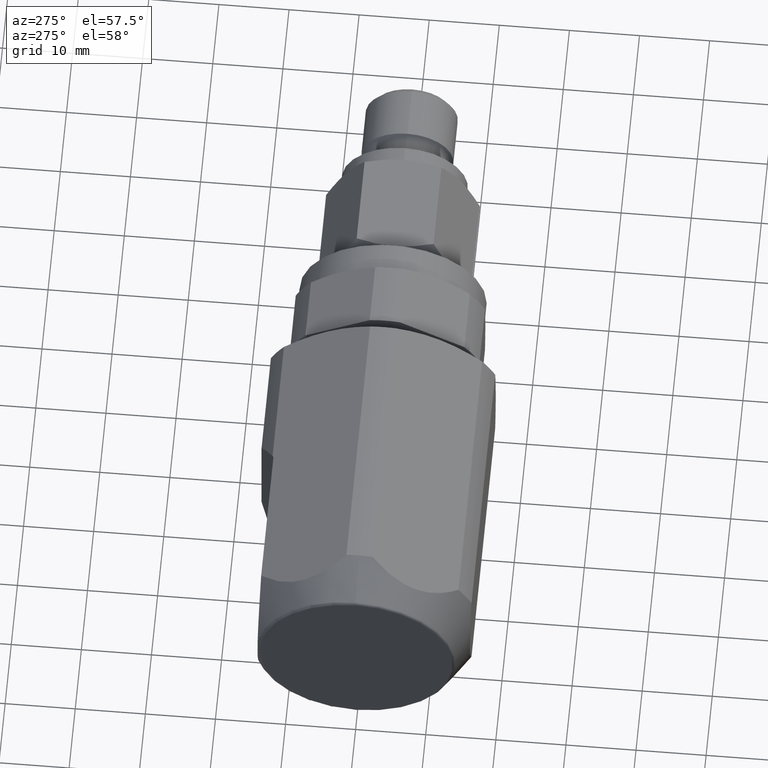
[diagram: clean part render]
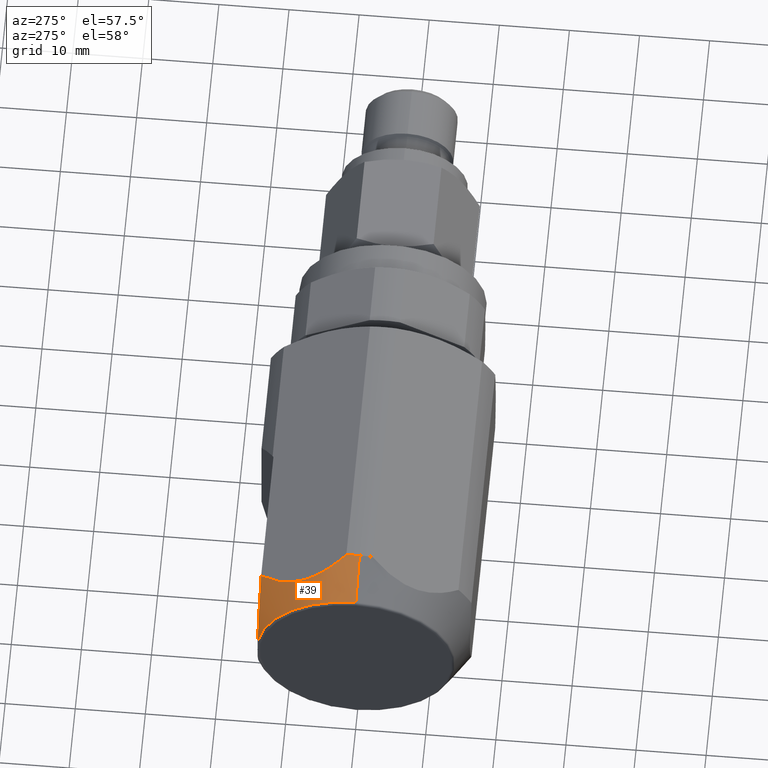
[diagram: same view with one face highlighted and labeled with its STEP entity id]
A machine part, auxiliary view. The second image highlights one B-rep face of the part: STEP entity #39.
In plain terms, the highlighted conical surface has half-angle 30 deg.
Its self-contained STEP definition (entity closure, byte-faithful):
#7 = ORIENTED_EDGE ( 'NONE', *, *, #8, .T. ) ;
#8 = EDGE_CURVE ( 'NONE', #43, #307, #1037, .T. ) ;
#9 = ORIENTED_EDGE ( 'NONE', *, *, #10, .T. ) ;
#10 = EDGE_CURVE ( 'NONE', #307, #11, #1033, .T. ) ;
#11 = VERTEX_POINT ( 'NONE', #1056 ) ;
#12 = ORIENTED_EDGE ( 'NONE', *, *, #13, .F. ) ;
#13 = EDGE_CURVE ( 'NONE', #14, #11, #1055, .T. ) ;
#14 = VERTEX_POINT ( 'NONE', #1054 ) ;
#15 = ORIENTED_EDGE ( 'NONE', *, *, #16, .T. ) ;
#16 = EDGE_CURVE ( 'NONE', #14, #44, #1061, .T. ) ;
#39 = ADVANCED_FACE ( 'NONE', ( #1158 ), #1157, .T. ) ;
#40 = EDGE_LOOP ( 'NONE', ( #41, #7, #9, #12, #15 ) ) ;
#41 = ORIENTED_EDGE ( 'NONE', *, *, #42, .F. ) ;
#42 = EDGE_CURVE ( 'NONE', #43, #44, #1156, .T. ) ;
#43 = VERTEX_POINT ( 'NONE', #1260 ) ;
#44 = VERTEX_POINT ( 'NONE', #1282 ) ;
#307 = VERTEX_POINT ( 'NONE', #1873 ) ;
#1032 = AXIS2_PLACEMENT_3D ( 'NONE', #1059, #1058, #1057 ) ;
#1033 = CIRCLE ( 'NONE', #1032, 17.50000000000000000 ) ;
#1034 = DIRECTION ( 'NONE',  ( 0.8660254037844383700, 6.123233995736769700E-017, 0.5000000000000003300 ) ) ;
#1035 = VECTOR ( 'NONE', #1034, 1000.000000000000100 ) ;
#1036 = CARTESIAN_POINT ( 'NONE',  ( 6.062177826491050000, 2.143131898507868200E-015, 17.50000000000000000 ) ) ;
#1037 = LINE ( 'NONE', #1036, #1035 ) ;
#1054 = CARTESIAN_POINT ( 'NONE',  ( 5.950626435118699000, 14.00000000000000000, 10.39230484541326000 ) ) ;
#1055 = B_SPLINE_CURVE_WITH_KNOTS ( 'NONE', 3,
 ( #1082, #1081, #1080, #1079, #1078, #1077, #1076, #1075, #1074, #1073, #1072, #1071, #1070, #1069, #1068, #1067, #1066, #1065, #1064, #1063 ),
 .UNSPECIFIED., .F., .F.,
 ( 4, 2, 2, 2, 2, 2, 2, 2, 2, 4 ),
 ( 0.0001941339088620765900, 0.003959760505137584200, 0.004901167154206464100, 0.005842573803275344000, 0.007725387101413097800, 0.008666793750481972500, 0.009608200399550844600, 0.01054960704861971800, 0.01149101369768859200, 0.01525664029396408200 ),
 .UNSPECIFIED. ) ;
#1056 = CARTESIAN_POINT ( 'NONE',  ( 6.062177826491050000, 1.860985421095654900, 17.40076818024050100 ) ) ;
#1057 = DIRECTION ( 'NONE',  ( 0.0000000000000000000, 0.0000000000000000000, 1.000000000000000000 ) ) ;
#1058 = DIRECTION ( 'NONE',  ( -1.000000000000000000, 0.0000000000000000000, 0.0000000000000000000 ) ) ;
#1059 = CARTESIAN_POINT ( 'NONE',  ( 6.062177826491050000, 0.0000000000000000000, 0.0000000000000000000 ) ) ;
#1061 = B_SPLINE_CURVE_WITH_KNOTS ( 'NONE', 3,
 ( #1086, #1085, #1084, #1083, #1115, #1114, #1113, #1112, #1111, #1110, #1109, #1108, #1107, #1106 ),
 .UNSPECIFIED., .F., .F.,
 ( 4, 2, 2, 2, 2, 2, 4 ),
 ( 0.04942347783026067300, 0.05197291806190455100, 0.05452235829354843500, 0.05579707840937037100, 0.05707179852519231300, 0.05834651864101425600, 0.05962123875683619800 ),
 .UNSPECIFIED. ) ;
#1063 = CARTESIAN_POINT ( 'NONE',  ( 6.062177826491050000, 1.860985421095654900, 17.40076818024050100 ) ) ;
#1064 = CARTESIAN_POINT ( 'NONE',  ( 5.333512229685125800, 2.760417318329378300, 16.88148093225482100 ) ) ;
#1065 = CARTESIAN_POINT ( 'NONE',  ( 4.697817010830770600, 3.703298203482249900, 16.33710839939805500 ) ) ;
#1066 = CARTESIAN_POINT ( 'NONE',  ( 4.110788766604716900, 4.978915256964548100, 15.60063055018717800 ) ) ;
#1067 = CARTESIAN_POINT ( 'NONE',  ( 4.004096659263399100, 5.239273760322539000, 15.45031249818763500 ) ) ;
#1068 = CARTESIAN_POINT ( 'NONE',  ( 3.818313926593157600, 5.762636318858850100, 15.14814898413292500 ) ) ;
#1069 = CARTESIAN_POINT ( 'NONE',  ( 3.738735305694719000, 6.026617583211956800, 14.99573933009763800 ) ) ;
#1070 = CARTESIAN_POINT ( 'NONE',  ( 3.608418015887059600, 6.559562664896549000, 14.68804334372374900 ) ) ;
#1071 = CARTESIAN_POINT ( 'NONE',  ( 3.557681277715426700, 6.828526815793163800, 14.53275681880123600 ) ) ;
#1072 = CARTESIAN_POINT ( 'NONE',  ( 3.487267235443408400, 7.371821120823720500, 14.21908570554265300 ) ) ;
#1073 = CARTESIAN_POINT ( 'NONE',  ( 3.467597638028069500, 7.647462459964842200, 14.05994410418973800 ) ) ;
#1074 = CARTESIAN_POINT ( 'NONE',  ( 3.458398146714581200, 8.473632711480762600, 13.58295448708056200 ) ) ;
#1075 = CARTESIAN_POINT ( 'NONE',  ( 3.518160569550421400, 9.016158124439092700, 13.26972729386685600 ) ) ;
#1076 = CARTESIAN_POINT ( 'NONE',  ( 3.696760392976631900, 9.818802653695629000, 12.80632025883701900 ) ) ;
#1077 = CARTESIAN_POINT ( 'NONE',  ( 3.771095899443517300, 10.08449654646528700, 12.65292181832441700 ) ) ;
#1078 = CARTESIAN_POINT ( 'NONE',  ( 3.947525562827901800, 10.61240699077094300, 12.34813258119652900 ) ) ;
#1079 = CARTESIAN_POINT ( 'NONE',  ( 4.049550962965756000, 10.87402458309207600, 12.19708759384517500 ) ) ;
#1080 = CARTESIAN_POINT ( 'NONE',  ( 4.612398451419611700, 12.15145772106293300, 11.45956122776596200 ) ) ;
#1081 = CARTESIAN_POINT ( 'NONE',  ( 5.233220216251663900, 13.09728363745342600, 10.91348838033138500 ) ) ;
#1082 = CARTESIAN_POINT ( 'NONE',  ( 5.950626435118699000, 14.00000000000000000, 10.39230484541326000 ) ) ;
#1083 = CARTESIAN_POINT ( 'NONE',  ( 3.608040327565344100, 13.99999999999999500, 7.934440340870628100 ) ) ;
#1084 = CARTESIAN_POINT ( 'NONE',  ( 4.747591132204047600, 13.99999999999999500, 9.195161301504844800 ) ) ;
#1085 = CARTESIAN_POINT ( 'NONE',  ( 5.341030453403910800, 13.99999999999999800, 9.801823227483664500 ) ) ;
#1086 = CARTESIAN_POINT ( 'NONE',  ( 5.950626435118699000, 14.00000000000000000, 10.39230484541326000 ) ) ;
#1106 = CARTESIAN_POINT ( 'NONE',  ( 0.2500000000000000000, 14.00000000000000000, 2.015511155429469800 ) ) ;
#1107 = CARTESIAN_POINT ( 'NONE',  ( 0.3531266303698908900, 14.00000000000000200, 2.433348840356790000 ) ) ;
#1108 = CARTESIAN_POINT ( 'NONE',  ( 0.4874519041005929100, 13.99999999999999600, 2.847965863848964700 ) ) ;
#1109 = CARTESIAN_POINT ( 'NONE',  ( 0.8003969836473761000, 13.99999999999999600, 3.647500716685856400 ) ) ;
#1110 = CARTESIAN_POINT ( 'NONE',  ( 0.9796546659043452500, 13.99999999999999300, 4.035781414667142500 ) ) ;
#1111 = CARTESIAN_POINT ( 'NONE',  ( 1.374606494738760400, 13.99999999999999800, 4.793974008628077300 ) ) ;
#1112 = CARTESIAN_POINT ( 'NONE',  ( 1.590324991364142200, 13.99999999999999300, 5.163873628959756000 ) ) ;
#1113 = CARTESIAN_POINT ( 'NONE',  ( 2.051323898481435900, 13.99999999999999800, 5.888769751202320700 ) ) ;
#1114 = CARTESIAN_POINT ( 'NONE',  ( 2.297346933061227500, 13.99999999999999500, 6.244627546891058100 ) ) ;
#1115 = CARTESIAN_POINT ( 'NONE',  ( 3.061615167443576500, 13.99999999999999800, 7.280695442007894000 ) ) ;
#1148 = DIRECTION ( 'NONE',  ( -1.000000000000000000, 0.0000000000000000000, 0.0000000000000000000 ) ) ;
#1149 = CARTESIAN_POINT ( 'NONE',  ( 0.2500000000000000000, 0.0000000000000000000, 0.0000000000000000000 ) ) ;
#1150 = AXIS2_PLACEMENT_3D ( 'NONE', #1149, #1148, #1259 ) ;
#1152 = DIRECTION ( 'NONE',  ( 0.0000000000000000000, 0.0000000000000000000, -1.000000000000000000 ) ) ;
#1153 = DIRECTION ( 'NONE',  ( 1.000000000000000000, 0.0000000000000000000, 0.0000000000000000000 ) ) ;
#1154 = CARTESIAN_POINT ( 'NONE',  ( 6.062177826491050000, 0.0000000000000000000, 0.0000000000000000000 ) ) ;
#1155 = AXIS2_PLACEMENT_3D ( 'NONE', #1154, #1153, #1152 ) ;
#1156 = CIRCLE ( 'NONE', #1150, 14.14433756729740000 ) ;
#1157 = CONICAL_SURFACE ( 'NONE', #1155, 17.50000000000000000, 0.5235987755982992600 ) ;
#1158 = FACE_OUTER_BOUND ( 'NONE', #40, .T. ) ;
#1259 = DIRECTION ( 'NONE',  ( 0.0000000000000000000, 0.0000000000000000000, 1.000000000000000000 ) ) ;
#1260 = CARTESIAN_POINT ( 'NONE',  ( 0.2500000000000000000, 0.0000000000000000000, 14.14433756729741100 ) ) ;
#1282 = CARTESIAN_POINT ( 'NONE',  ( 0.2500000000000000000, 14.00000000000000000, 2.015511155429469800 ) ) ;
#1873 = CARTESIAN_POINT ( 'NONE',  ( 6.062177826491050000, 2.143131898507868200E-015, 17.50000000000000000 ) ) ;